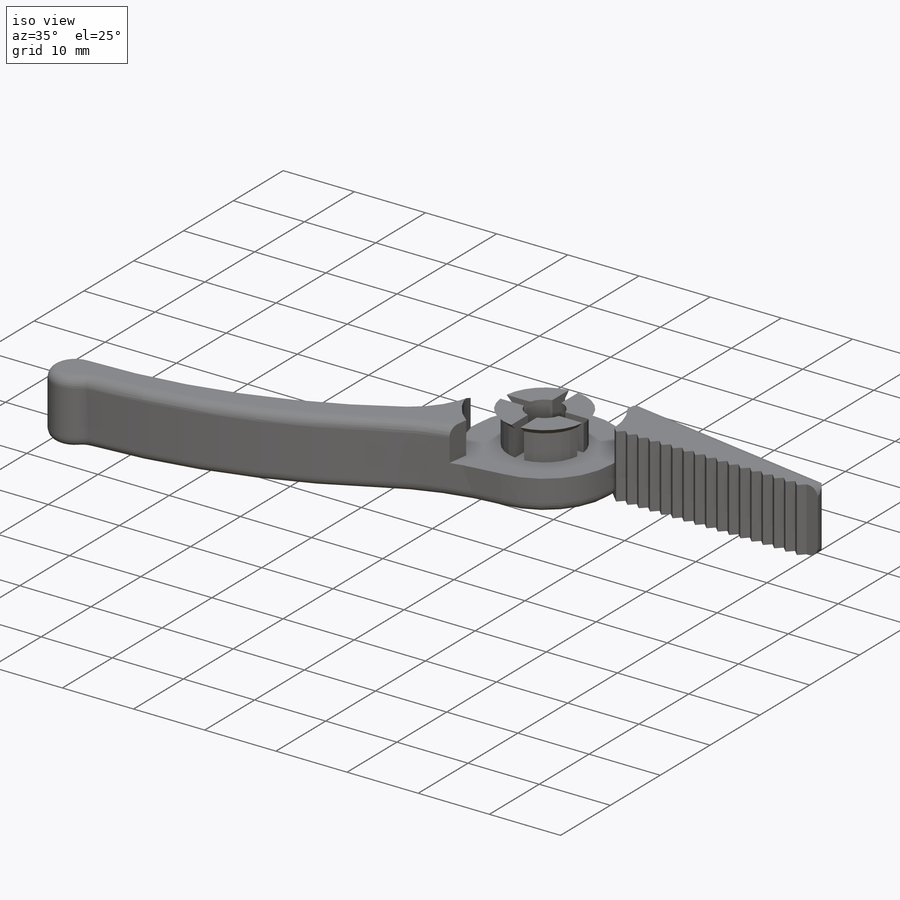
[diagram: iso view]
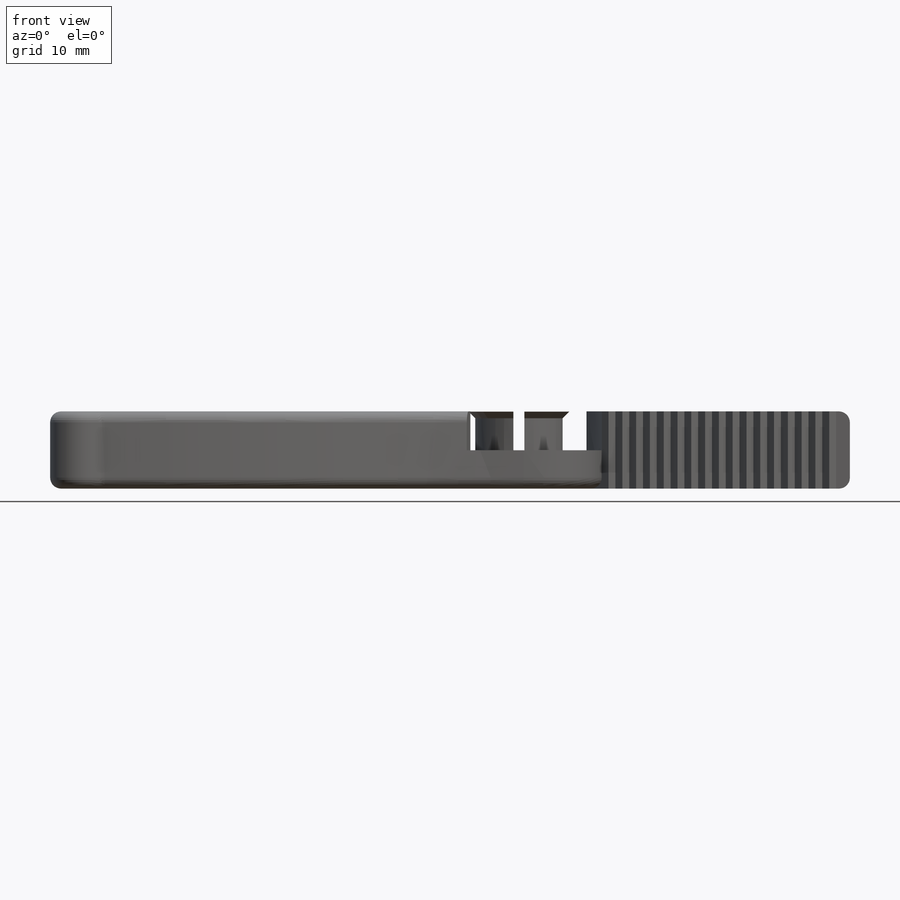
[diagram: front view]
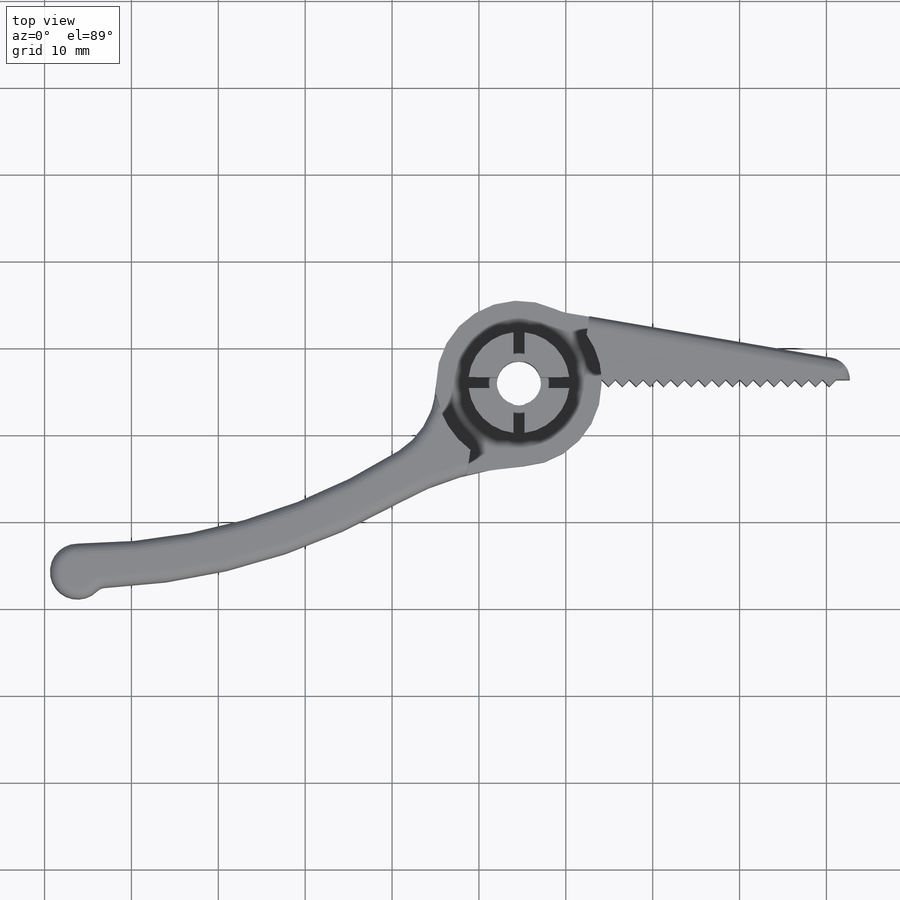
[diagram: top view]
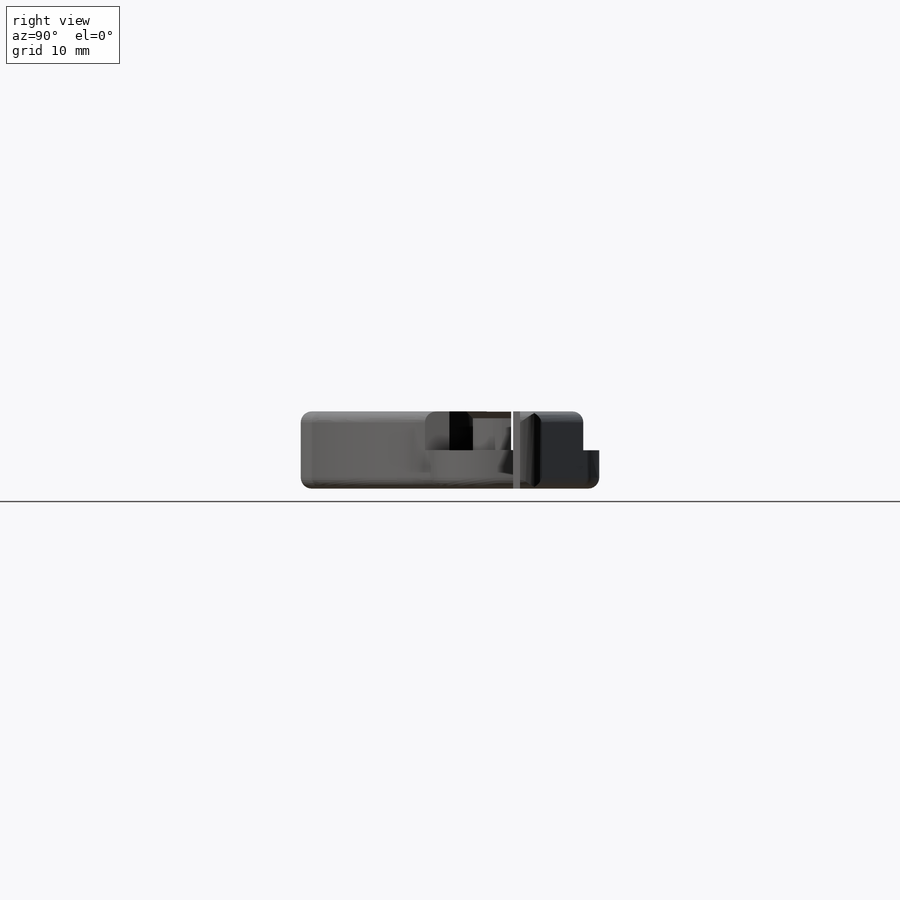
[diagram: right view]
SOLIDWORKS PART (.sldprt)
format: sldprt  version: not decoded by parser v0  size: 527,360 bytes
history: native  units: mm
features: sketch x8, extrude x4, fillet x4, cut_extrude x4, chamfer x2, material x1, pattern_circular x1 (+15 scaffold rows collapsed)
feature tree (39):
  scaffold x15  (default folders/planes/origin — collapsed)
  material  "ABS"
  sketch  "Sketch1"  dims[c1.D1=10.16mm c1.D2=19.05mm c1.D6=6.35mm c1.D8=~69.302049mm c2.D6=5.08mm c2.D3=38.1mm c2.D4=2.54mm c2.D5=~21.677049mm c2.D7=50.8mm c2.D9=50.8mm c2.D10=50.8mm c2.D8=5.08mm c2.D11=25.4mm c2.D12=25.4mm c3.D5=28.575mm c4.D5=60.0deg c4.D7=1.5875mm c4.D8=1.5875mm c4.D9=1.5875mm c5.D5=1.5875mm c5.D7=1.5875mm c5.D6=2.54mm c6.D7=~0.396875mm]
  extrude  "Extrude1"  Depth=8.89mm
  fillet  "Fillet3"  Radius=33.02mm
  sketch  "Sketch4"
  cut_extrude  "Cut-Extrude1"  Depth=4.4704mm
  fillet  "Fillet4"  Radius=1.27mm
  fillet  "Fillet7"  Radius=1.27mm
  fillet  "Fillet8"  Radius=2.54mm
  sketch  "Sketch7"  dims[D1=19.1008mm]
  cut_extrude  "Cut-Extrude5"  [1 undecoded]
  sketch  "Sketch8"
  extrude  "Extrude2"  [1 undecoded]
  sketch  "Sketch11"  dims[D1=10.1346mm D6=5.08mm D2=0.635mm D3=0.635mm D4=0.635mm D5=0.635mm]
  extrude  "Extrude3"  Depth=4.445mm
  sketch  "Sketch12"  dims[D1=0.0mm]
  extrude  "Extrude4"  Depth=0.762mm
  pattern_circular  "CirPattern1"  Count=4 Angle=360deg
  chamfer  "Chamfer1"  Distance=0.762mm Angle=45deg
  sketch  "Sketch14"
  cut_extrude  "Cut-Extrude6"  [1 undecoded]
  chamfer  "Chamfer2"  Distance=1.27mm Angle=45deg
  sketch  "Sketch15"  dims[c1.D1=1.27mm c1.D2=1.27mm c2.D1=1.27mm c2.D2=1.27mm]
  cut_extrude  "Cut-Extrude7"  [1 undecoded]
decode coverage: 16 of 23 modeling features carry decoded parameters
note: ~ marks probable driven/reference dimensions
note: 4 parameter values undecoded
summary: no parameter record found for 4 features
note: suppression state not decoded; provenance and decode notes live in map.json
